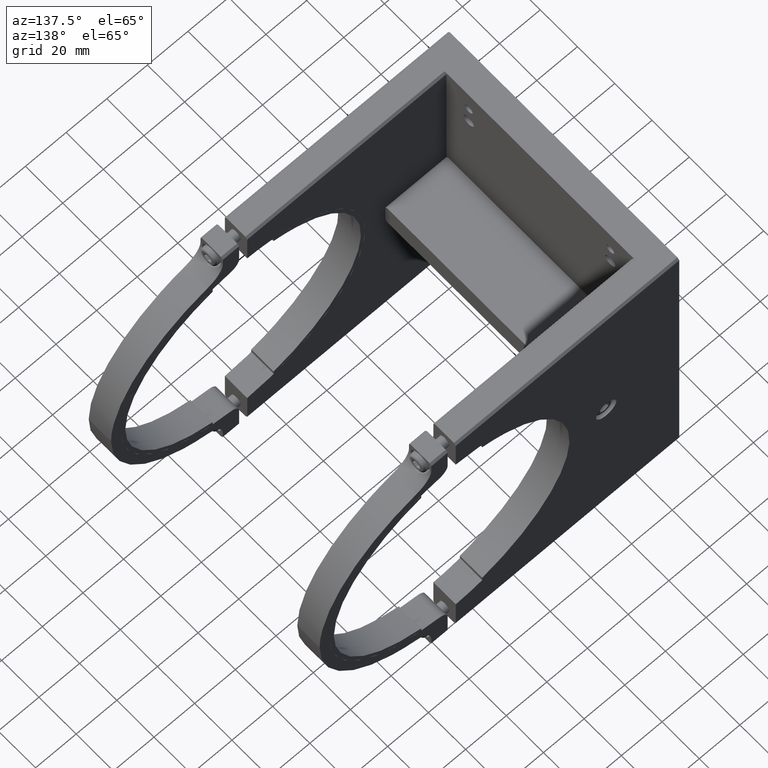
[diagram: clean part render]
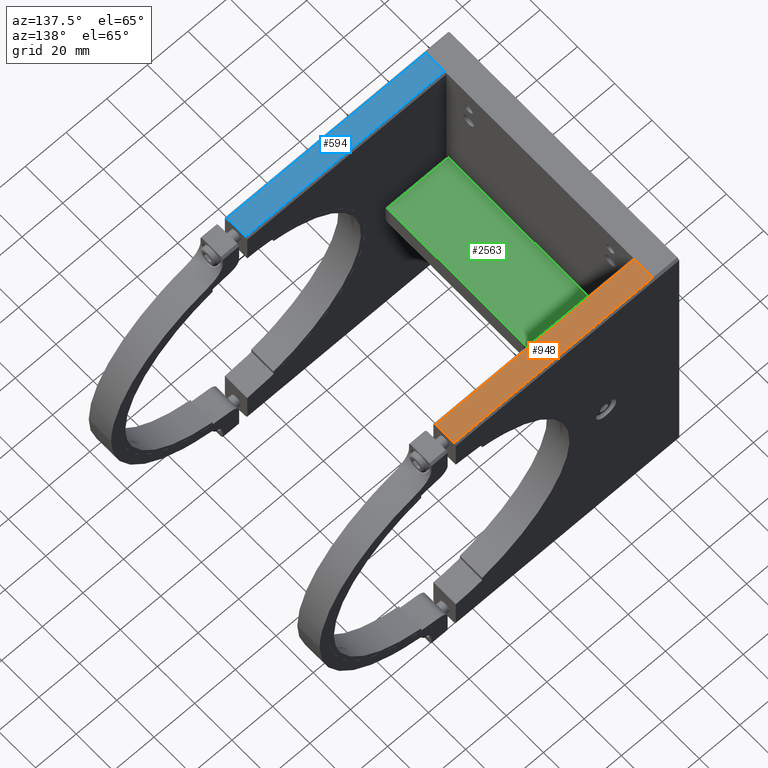
[diagram: same view with three faces highlighted in distinct colors, each labeled with its STEP entity id]
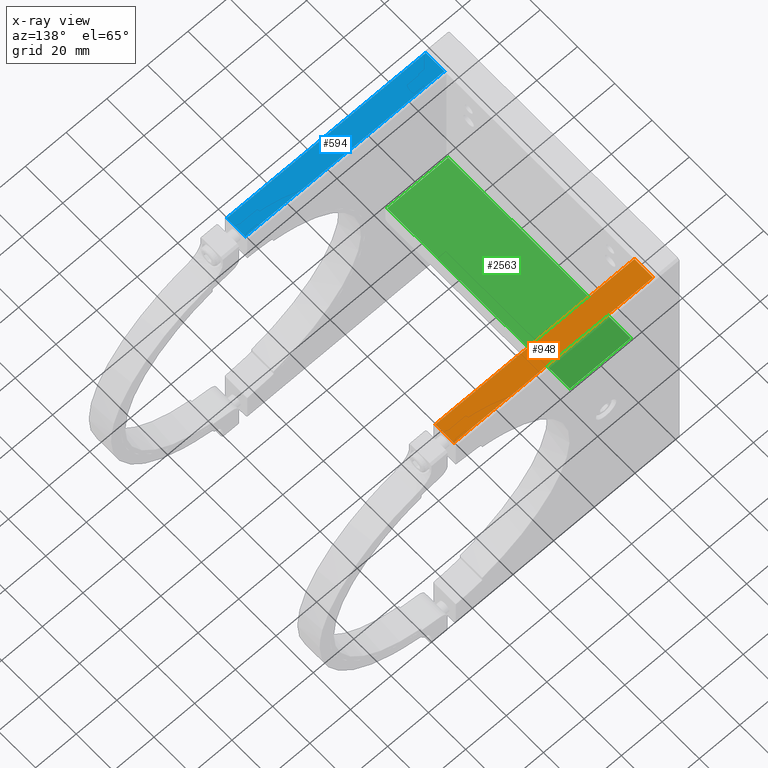
[diagram: x-ray of the same camera — body ghosted, the three highlighted faces saturated]
A machine part, auxiliary view with three faces highlighted in distinct colors.
The next image is the same camera in x-ray (body ghosted, the three faces saturated) — at least one of them is partly hidden behind the body in this view.
Their STEP definitions:

[orange] entity #948 — the highlighted face is a freeform B-spline surface patch.
#130 = CARTESIAN_POINT ( 'NONE',  ( 98.00000000000000000, 11.00000000000000000, 77.00000000000000000 ) ) ;
#207 = EDGE_CURVE ( 'NONE', #4914, #6156, #3662, .T. ) ;
#394 = ORIENTED_EDGE ( 'NONE', *, *, #7191, .T. ) ;
#948 = ADVANCED_FACE ( 'NONE', ( #3015 ), #956, .T. ) ;
#956 = B_SPLINE_SURFACE_WITH_KNOTS ( 'NONE', 1, 1, ( 
 ( #5195, #3049 ),
 ( #6322, #130 ) ),
 .UNSPECIFIED., .F., .F., .F.,
 ( 2, 2 ),
 ( 2, 2 ),
 ( 0.0000000000000000000, 1.000000000000000000 ),
 ( 0.0000000000000000000, 1.000000000000000000 ),
 .UNSPECIFIED. ) ;
#1105 = VERTEX_POINT ( 'NONE', #7023 ) ;
#1127 = VERTEX_POINT ( 'NONE', #4909 ) ;
#1364 = CARTESIAN_POINT ( 'NONE',  ( 98.00000000000000000, 0.9999999986666670004, 77.00000000000000000 ) ) ;
#2139 = CARTESIAN_POINT ( 'NONE',  ( 0.0000000000000000000, 11.00000000133331923, 77.00000000000000000 ) ) ;
#2439 = EDGE_CURVE ( 'NONE', #4914, #1105, #5914, .T. ) ;
#2957 = ORIENTED_EDGE ( 'NONE', *, *, #4727, .T. ) ;
#3015 = FACE_OUTER_BOUND ( 'NONE', #7226, .T. ) ;
#3049 = CARTESIAN_POINT ( 'NONE',  ( 0.0000000000000000000, 11.00000000000000000, 77.00000000000000000 ) ) ;
#3438 = B_SPLINE_CURVE_WITH_KNOTS ( 'NONE', 1,
 ( #3870, #6662 ),
 .UNSPECIFIED., .F., .F.,
 ( 2, 2 ),
 ( 0.0000000000000000000, 1.000000000000000000 ),
 .UNSPECIFIED. ) ;
#3662 = B_SPLINE_CURVE_WITH_KNOTS ( 'NONE', 1,
 ( #6431, #1364 ),
 .UNSPECIFIED., .F., .F.,
 ( 2, 2 ),
 ( 0.0000000000000000000, 1.000000000000000000 ),
 .UNSPECIFIED. ) ;
#3870 = CARTESIAN_POINT ( 'NONE',  ( 98.00000000000000000, 11.00000000133331923, 77.00000000000000000 ) ) ;
#4341 = CARTESIAN_POINT ( 'NONE',  ( 0.0000000000000000000, 0.9999999986666670004, 77.00000000000000000 ) ) ;
#4364 = ORIENTED_EDGE ( 'NONE', *, *, #207, .T. ) ;
#4727 = EDGE_CURVE ( 'NONE', #1127, #1105, #3438, .T. ) ;
#4838 = B_SPLINE_CURVE_WITH_KNOTS ( 'NONE', 1,
 ( #4943, #6480 ),
 .UNSPECIFIED., .F., .F.,
 ( 2, 2 ),
 ( 0.0000000000000000000, 1.000000000000000000 ),
 .UNSPECIFIED. ) ;
#4909 = CARTESIAN_POINT ( 'NONE',  ( 98.00000000000000000, 11.00000000133331923, 77.00000000000000000 ) ) ;
#4914 = VERTEX_POINT ( 'NONE', #4341 ) ;
#4943 = CARTESIAN_POINT ( 'NONE',  ( 98.00000000000000000, 0.9999999986666670004, 77.00000000000000000 ) ) ;
#5195 = CARTESIAN_POINT ( 'NONE',  ( 0.0000000000000000000, 1.000000000000000000, 77.00000000000000000 ) ) ;
#5914 = B_SPLINE_CURVE_WITH_KNOTS ( 'NONE', 1,
 ( #6098, #2139 ),
 .UNSPECIFIED., .F., .F.,
 ( 2, 2 ),
 ( 0.0000000000000000000, 1.000000000000000000 ),
 .UNSPECIFIED. ) ;
#6098 = CARTESIAN_POINT ( 'NONE',  ( 0.0000000000000000000, 0.9999999986666670004, 77.00000000000000000 ) ) ;
#6156 = VERTEX_POINT ( 'NONE', #6646 ) ;
#6322 = CARTESIAN_POINT ( 'NONE',  ( 98.00000000000000000, 1.000000000000000000, 77.00000000000000000 ) ) ;
#6431 = CARTESIAN_POINT ( 'NONE',  ( 0.0000000000000000000, 0.9999999986666670004, 77.00000000000000000 ) ) ;
#6480 = CARTESIAN_POINT ( 'NONE',  ( 98.00000000000000000, 11.00000000133331923, 77.00000000000000000 ) ) ;
#6646 = CARTESIAN_POINT ( 'NONE',  ( 98.00000000000000000, 0.9999999986666670004, 77.00000000000000000 ) ) ;
#6662 = CARTESIAN_POINT ( 'NONE',  ( 0.0000000000000000000, 11.00000000133331923, 77.00000000000000000 ) ) ;
#6811 = ORIENTED_EDGE ( 'NONE', *, *, #2439, .F. ) ;
#7023 = CARTESIAN_POINT ( 'NONE',  ( 0.0000000000000000000, 11.00000000133331923, 77.00000000000000000 ) ) ;
#7191 = EDGE_CURVE ( 'NONE', #6156, #1127, #4838, .T. ) ;
#7226 = EDGE_LOOP ( 'NONE', ( #394, #2957, #6811, #4364 ) ) ;

[blue] entity #594 — the highlighted face is a freeform B-spline surface patch.
#477 = ORIENTED_EDGE ( 'NONE', *, *, #5546, .T. ) ;
#594 = ADVANCED_FACE ( 'NONE', ( #3149 ), #3063, .T. ) ;
#613 = VERTEX_POINT ( 'NONE', #7128 ) ;
#753 = ORIENTED_EDGE ( 'NONE', *, *, #6071, .T. ) ;
#1123 = ORIENTED_EDGE ( 'NONE', *, *, #4643, .T. ) ;
#1177 = EDGE_LOOP ( 'NONE', ( #5429, #753, #1123, #477 ) ) ;
#1687 = B_SPLINE_CURVE_WITH_KNOTS ( 'NONE', 1,
 ( #5327, #2561 ),
 .UNSPECIFIED., .F., .F.,
 ( 2, 2 ),
 ( 0.0000000000000000000, 1.000000000000000000 ),
 .UNSPECIFIED. ) ;
#2062 = CARTESIAN_POINT ( 'NONE',  ( 98.00000000000000000, 1.000000000000000000, -77.00000000000000000 ) ) ;
#2349 = CARTESIAN_POINT ( 'NONE',  ( 0.0000000000000000000, 0.9999999986666670004, -77.00000000000000000 ) ) ;
#2405 = VERTEX_POINT ( 'NONE', #6356 ) ;
#2561 = CARTESIAN_POINT ( 'NONE',  ( 98.00000000000000000, 11.00000000133331923, -77.00000000000000000 ) ) ;
#2598 = CARTESIAN_POINT ( 'NONE',  ( 0.0000000000000000000, 11.00000000000000000, -77.00000000000000000 ) ) ;
#3063 = B_SPLINE_SURFACE_WITH_KNOTS ( 'NONE', 1, 1, ( 
 ( #4216, #2598 ),
 ( #2062, #4898 ) ),
 .UNSPECIFIED., .F., .F., .F.,
 ( 2, 2 ),
 ( 2, 2 ),
 ( 0.0000000000000000000, 1.000000000000000000 ),
 ( 0.0000000000000000000, 1.000000000000000000 ),
 .UNSPECIFIED. ) ;
#3149 = FACE_OUTER_BOUND ( 'NONE', #1177, .T. ) ;
#3359 = CARTESIAN_POINT ( 'NONE',  ( 98.00000000000000000, 0.9999999986666670004, -77.00000000000000000 ) ) ;
#3763 = CARTESIAN_POINT ( 'NONE',  ( 98.00000000000000000, 0.9999999986666670004, -77.00000000000000000 ) ) ;
#3962 = B_SPLINE_CURVE_WITH_KNOTS ( 'NONE', 1,
 ( #4351, #7105 ),
 .UNSPECIFIED., .F., .F.,
 ( 2, 2 ),
 ( 0.0000000000000000000, 1.000000000000000000 ),
 .UNSPECIFIED. ) ;
#4216 = CARTESIAN_POINT ( 'NONE',  ( 98.00000000000000000, 11.00000000000000000, -77.00000000000000000 ) ) ;
#4351 = CARTESIAN_POINT ( 'NONE',  ( 98.00000000000000000, 11.00000000133331923, -77.00000000000000000 ) ) ;
#4498 = CARTESIAN_POINT ( 'NONE',  ( 0.0000000000000000000, 11.00000000133331923, -77.00000000000000000 ) ) ;
#4643 = EDGE_CURVE ( 'NONE', #2405, #6829, #3962, .T. ) ;
#4898 = CARTESIAN_POINT ( 'NONE',  ( 0.0000000000000000000, 1.000000000000000000, -77.00000000000000000 ) ) ;
#5327 = CARTESIAN_POINT ( 'NONE',  ( 0.0000000000000000000, 11.00000000133331923, -77.00000000000000000 ) ) ;
#5338 = CARTESIAN_POINT ( 'NONE',  ( 0.0000000000000000000, 11.00000000133331923, -77.00000000000000000 ) ) ;
#5429 = ORIENTED_EDGE ( 'NONE', *, *, #7241, .F. ) ;
#5546 = EDGE_CURVE ( 'NONE', #6829, #613, #6602, .T. ) ;
#5751 = VERTEX_POINT ( 'NONE', #5338 ) ;
#5996 = CARTESIAN_POINT ( 'NONE',  ( 0.0000000000000000000, 0.9999999986666670004, -77.00000000000000000 ) ) ;
#6071 = EDGE_CURVE ( 'NONE', #5751, #2405, #1687, .T. ) ;
#6356 = CARTESIAN_POINT ( 'NONE',  ( 98.00000000000000000, 11.00000000133331923, -77.00000000000000000 ) ) ;
#6567 = B_SPLINE_CURVE_WITH_KNOTS ( 'NONE', 1,
 ( #4498, #2349 ),
 .UNSPECIFIED., .F., .F.,
 ( 2, 2 ),
 ( 0.0000000000000000000, 1.000000000000000000 ),
 .UNSPECIFIED. ) ;
#6602 = B_SPLINE_CURVE_WITH_KNOTS ( 'NONE', 1,
 ( #3359, #5996 ),
 .UNSPECIFIED., .F., .F.,
 ( 2, 2 ),
 ( 0.0000000000000000000, 1.000000000000000000 ),
 .UNSPECIFIED. ) ;
#6829 = VERTEX_POINT ( 'NONE', #3763 ) ;
#7105 = CARTESIAN_POINT ( 'NONE',  ( 98.00000000000000000, 0.9999999986666670004, -77.00000000000000000 ) ) ;
#7128 = CARTESIAN_POINT ( 'NONE',  ( 0.0000000000000000000, 0.9999999986666670004, -77.00000000000000000 ) ) ;
#7241 = EDGE_CURVE ( 'NONE', #5751, #613, #6567, .T. ) ;

[green] entity #2563 — the highlighted face is a freeform B-spline surface patch.
#310 = CARTESIAN_POINT ( 'NONE',  ( 30.00000000000000000, -49.00000000000000000, 6.000000000000000000 ) ) ;
#373 = B_SPLINE_SURFACE_WITH_KNOTS ( 'NONE', 1, 1, ( 
 ( #1770, #5116 ),
 ( #3970, #5657 ) ),
 .UNSPECIFIED., .F., .F., .F.,
 ( 2, 2 ),
 ( 2, 2 ),
 ( 0.0000000000000000000, 1.000000000000000000 ),
 ( 0.0000000000000000000, 1.000000000000000000 ),
 .UNSPECIFIED. ) ;
#563 = EDGE_CURVE ( 'NONE', #1792, #2885, #5762, .T. ) ;
#596 = ORIENTED_EDGE ( 'NONE', *, *, #5132, .T. ) ;
#700 = CARTESIAN_POINT ( 'NONE',  ( 30.00000000000000000, -49.00000000000000000, 6.000000000000000000 ) ) ;
#718 = CARTESIAN_POINT ( 'NONE',  ( 0.0000000000000000000, 49.00000000000000000, 6.000000000000000000 ) ) ;
#873 = B_SPLINE_CURVE_WITH_KNOTS ( 'NONE', 1,
 ( #6657, #310 ),
 .UNSPECIFIED., .F., .F.,
 ( 2, 2 ),
 ( 0.0000000000000000000, 1.000000000000000000 ),
 .UNSPECIFIED. ) ;
#1436 = EDGE_CURVE ( 'NONE', #5711, #1835, #4275, .T. ) ;
#1716 = CARTESIAN_POINT ( 'NONE',  ( 0.0000000000000000000, -49.00000000000000000, 6.000000000000000000 ) ) ;
#1770 = CARTESIAN_POINT ( 'NONE',  ( 0.0000000000000000000, -49.00000000000000000, 6.000000000000000000 ) ) ;
#1792 = VERTEX_POINT ( 'NONE', #1716 ) ;
#1835 = VERTEX_POINT ( 'NONE', #700 ) ;
#2104 = FACE_OUTER_BOUND ( 'NONE', #5087, .T. ) ;
#2434 = ORIENTED_EDGE ( 'NONE', *, *, #6661, .T. ) ;
#2526 = CARTESIAN_POINT ( 'NONE',  ( 0.0000000000000000000, -49.00000000000000000, 6.000000000000000000 ) ) ;
#2563 = ADVANCED_FACE ( 'NONE', ( #2104 ), #373, .T. ) ;
#2885 = VERTEX_POINT ( 'NONE', #5440 ) ;
#3970 = CARTESIAN_POINT ( 'NONE',  ( 30.00000000000000000, -49.00000000000000000, 6.000000000000000000 ) ) ;
#4254 = CARTESIAN_POINT ( 'NONE',  ( 30.00000000000000000, 49.00000000000000000, 6.000000000000000000 ) ) ;
#4275 = B_SPLINE_CURVE_WITH_KNOTS ( 'NONE', 1,
 ( #4254, #4338 ),
 .UNSPECIFIED., .F., .F.,
 ( 2, 2 ),
 ( 0.0000000000000000000, 1.000000000000000000 ),
 .UNSPECIFIED. ) ;
#4277 = ORIENTED_EDGE ( 'NONE', *, *, #1436, .F. ) ;
#4338 = CARTESIAN_POINT ( 'NONE',  ( 30.00000000000000000, -49.00000000000000000, 6.000000000000000000 ) ) ;
#4744 = CARTESIAN_POINT ( 'NONE',  ( 30.00000000000000000, 49.00000000000000000, 6.000000000000000000 ) ) ;
#5087 = EDGE_LOOP ( 'NONE', ( #4277, #596, #6568, #2434 ) ) ;
#5116 = CARTESIAN_POINT ( 'NONE',  ( 0.0000000000000000000, 49.00000000000000000, 6.000000000000000000 ) ) ;
#5132 = EDGE_CURVE ( 'NONE', #5711, #2885, #6486, .T. ) ;
#5440 = CARTESIAN_POINT ( 'NONE',  ( 0.0000000000000000000, 49.00000000000000000, 6.000000000000000000 ) ) ;
#5657 = CARTESIAN_POINT ( 'NONE',  ( 30.00000000000000000, 49.00000000000000000, 6.000000000000000000 ) ) ;
#5711 = VERTEX_POINT ( 'NONE', #6501 ) ;
#5762 = B_SPLINE_CURVE_WITH_KNOTS ( 'NONE', 1,
 ( #2526, #6494 ),
 .UNSPECIFIED., .F., .F.,
 ( 2, 2 ),
 ( 0.0000000000000000000, 1.000000000000000000 ),
 .UNSPECIFIED. ) ;
#6486 = B_SPLINE_CURVE_WITH_KNOTS ( 'NONE', 1,
 ( #4744, #718 ),
 .UNSPECIFIED., .F., .F.,
 ( 2, 2 ),
 ( 0.0000000000000000000, 1.000000000000000000 ),
 .UNSPECIFIED. ) ;
#6494 = CARTESIAN_POINT ( 'NONE',  ( 0.0000000000000000000, 49.00000000000000000, 6.000000000000000000 ) ) ;
#6501 = CARTESIAN_POINT ( 'NONE',  ( 30.00000000000000000, 49.00000000000000000, 6.000000000000000000 ) ) ;
#6568 = ORIENTED_EDGE ( 'NONE', *, *, #563, .F. ) ;
#6657 = CARTESIAN_POINT ( 'NONE',  ( 0.0000000000000000000, -49.00000000000000000, 6.000000000000000000 ) ) ;
#6661 = EDGE_CURVE ( 'NONE', #1792, #1835, #873, .T. ) ;